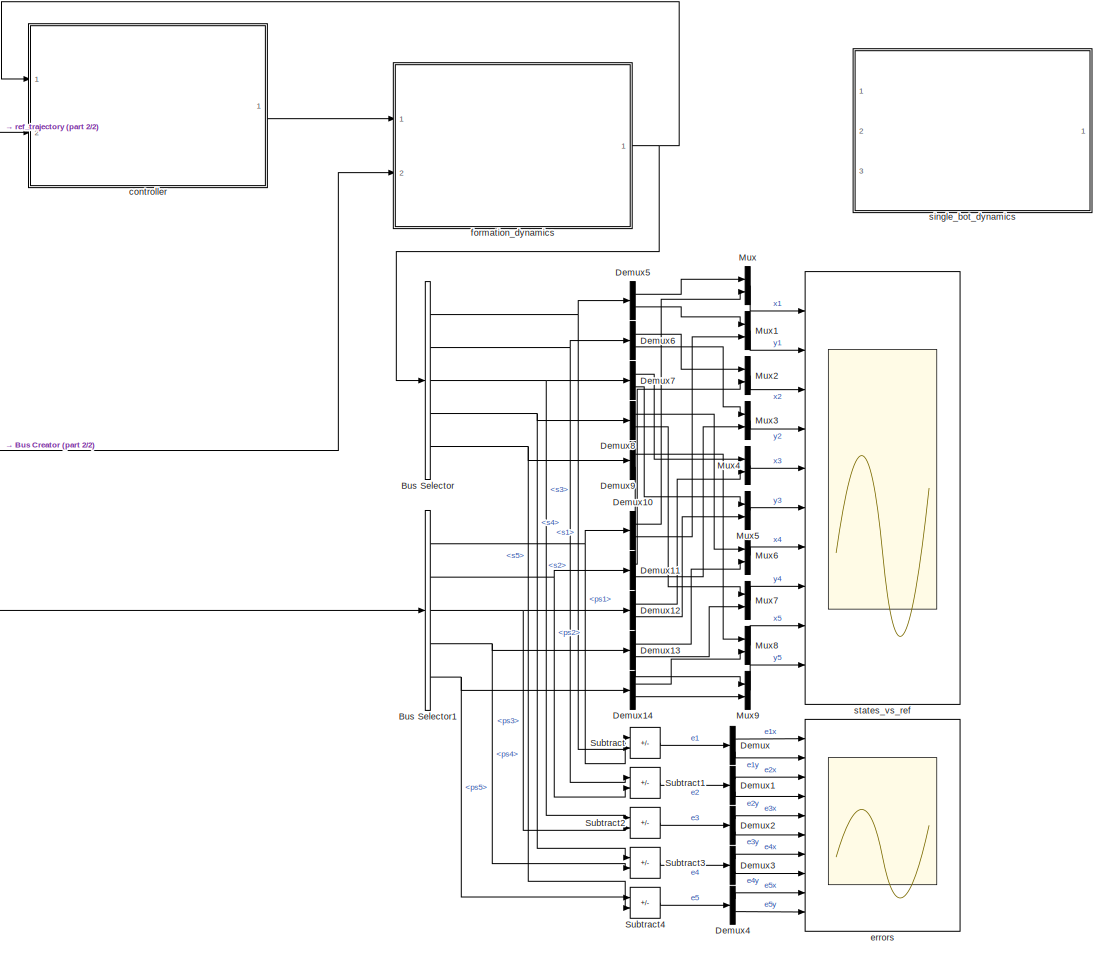
[diagram: root canvas - part 1/2, center side, full height]
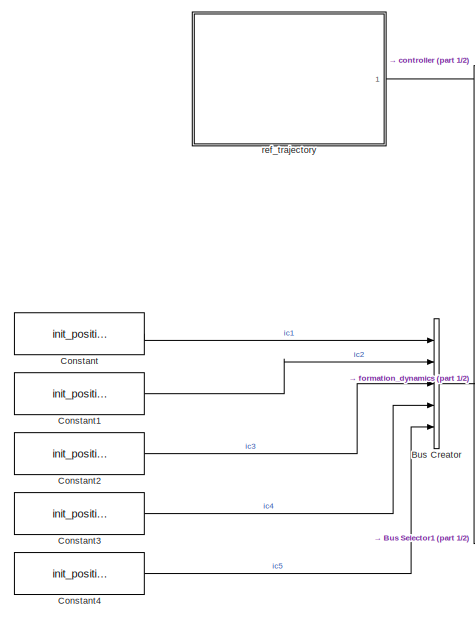
[diagram: root canvas - part 2/2, middle left region]
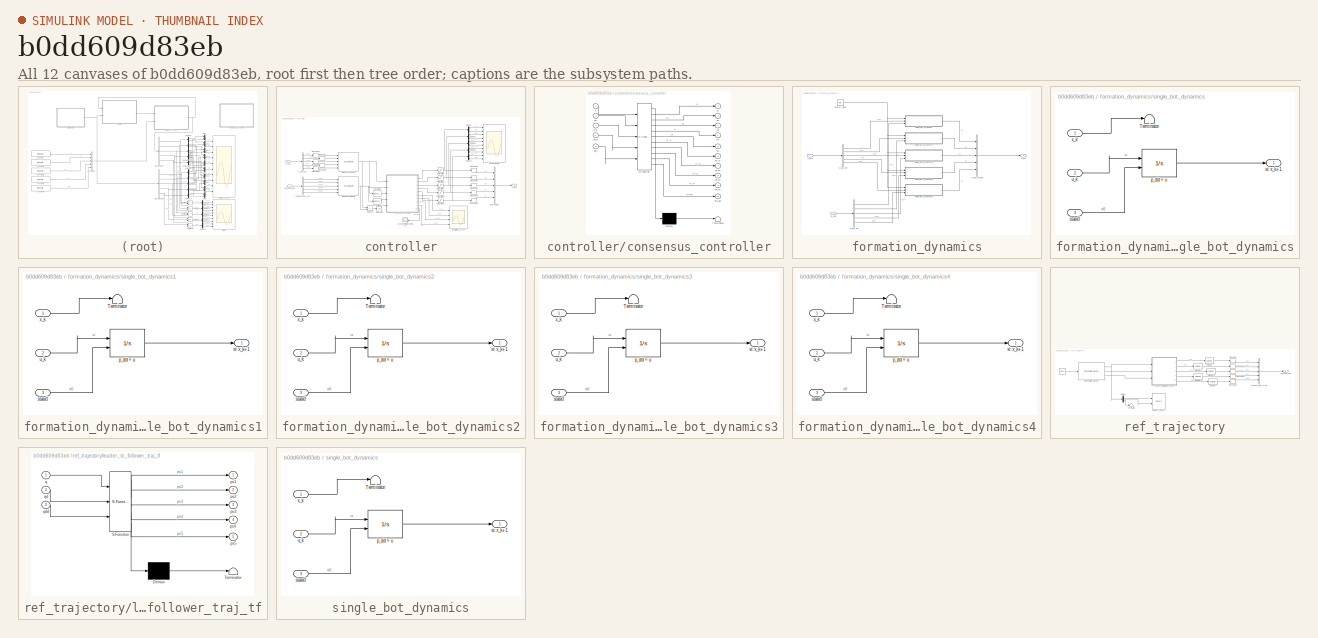
[diagram: thumbnail index - all 12 canvases of the model, root first then tree order]
MODEL slx_b0dd609d83eb
KIND model
CONFIG AbsTol = auto
CONFIG EnableMultiTasking = off
CONFIG FixedStep = 0.1
CONFIG MaxStep = auto
CONFIG MinStep = auto
CONFIG RelTol = 1e-3
CONFIG SampleTimeConstraint = Unconstrained
CONFIG SolverName = ode4
CONFIG StartTime = 0.0
CONFIG StopTime = 10
BLOCK [BusCreator] Bus Creator
  DisplayOption = bar
  InheritFromInputs = on
  Inputs = 5
  Ports = [5, 1]
BLOCK [BusSelector] Bus Selector
  OutputSignals = s1,s2,s3,s4,s5
  Ports = [1, 5]
BLOCK [BusSelector] Bus Selector1
  OutputSignals = ps1,ps2,ps3,ps4,ps5
  Ports = [1, 5]
BLOCK [Constant] Constant
  Value = init_positions(1, 1:2)
BLOCK [Constant] Constant1
  Value = init_positions(2, 1:2)
BLOCK [Constant] Constant2
  Value = init_positions(3, 1:2)
BLOCK [Constant] Constant3
  Value = init_positions(4, 1:2)
BLOCK [Constant] Constant4
  Value = init_positions(5, 1:2)
BLOCK [Demux] Demux
  Outputs = 2
  Ports = [1, 2]
BLOCK [Demux] Demux1
  Outputs = 2
  Ports = [1, 2]
BLOCK [Demux] Demux10
  Outputs = 2
  Ports = [1, 2]
BLOCK [Demux] Demux11
  Outputs = 2
  Ports = [1, 2]
BLOCK [Demux] Demux12
  Outputs = 2
  Ports = [1, 2]
BLOCK [Demux] Demux13
  Outputs = 2
  Ports = [1, 2]
BLOCK [Demux] Demux14
  Outputs = 2
  Ports = [1, 2]
BLOCK [Demux] Demux2
  Outputs = 2
  Ports = [1, 2]
BLOCK [Demux] Demux3
  Outputs = 2
  Ports = [1, 2]
BLOCK [Demux] Demux4
  Outputs = 2
  Ports = [1, 2]
BLOCK [Demux] Demux5
  Outputs = 2
  Ports = [1, 2]
BLOCK [Demux] Demux6
  Outputs = 2
  Ports = [1, 2]
BLOCK [Demux] Demux7
  Outputs = 2
  Ports = [1, 2]
BLOCK [Demux] Demux8
  Outputs = 2
  Ports = [1, 2]
BLOCK [Demux] Demux9
  Outputs = 2
  Ports = [1, 2]
BLOCK [Mux] Mux
  DisplayOption = bar
  Inputs = 2
  Ports = [2, 1]
BLOCK [Mux] Mux1
  DisplayOption = bar
  Inputs = 2
  Ports = [2, 1]
BLOCK [Mux] Mux2
  DisplayOption = bar
  Inputs = 2
  Ports = [2, 1]
BLOCK [Mux] Mux3
  DisplayOption = bar
  Inputs = 2
  Ports = [2, 1]
BLOCK [Mux] Mux4
  DisplayOption = bar
  Inputs = 2
  Ports = [2, 1]
BLOCK [Mux] Mux5
  DisplayOption = bar
  Inputs = 2
  Ports = [2, 1]
BLOCK [Mux] Mux6
  DisplayOption = bar
  Inputs = 2
  Ports = [2, 1]
BLOCK [Mux] Mux7
  DisplayOption = bar
  Inputs = 2
  Ports = [2, 1]
BLOCK [Mux] Mux8
  DisplayOption = bar
  Inputs = 2
  Ports = [2, 1]
BLOCK [Mux] Mux9
  DisplayOption = bar
  Inputs = 2
  Ports = [2, 1]
BLOCK [Sum] Subtract
  IconShape = rectangular
  Inputs = +-
  Ports = [2, 1]
BLOCK [Sum] Subtract1
  IconShape = rectangular
  Inputs = +-
  Ports = [2, 1]
BLOCK [Sum] Subtract2
  IconShape = rectangular
  Inputs = +-
  Ports = [2, 1]
BLOCK [Sum] Subtract3
  IconShape = rectangular
  Inputs = +-
  Ports = [2, 1]
BLOCK [Sum] Subtract4
  IconShape = rectangular
  Inputs = +-
  Ports = [2, 1]
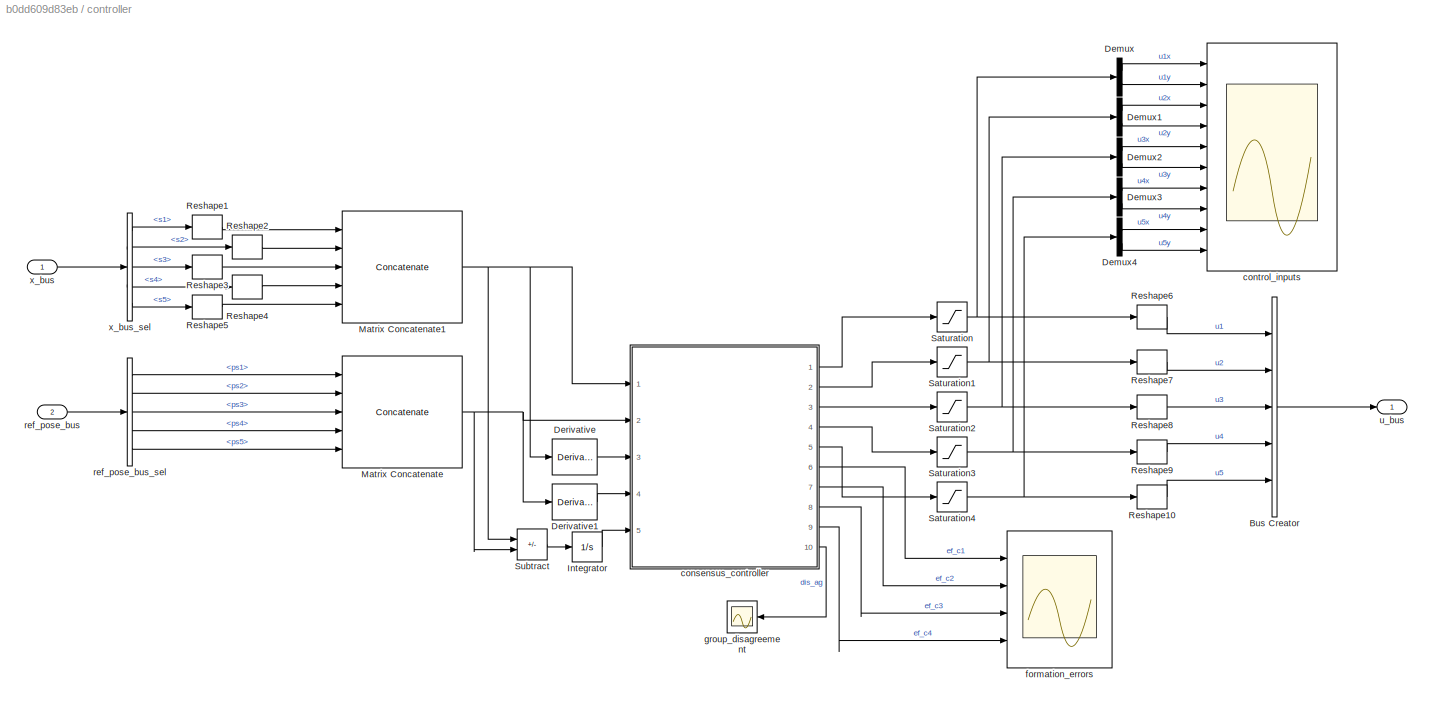
BLOCK [SubSystem] controller
  Ports = [2, 1]
  RequestExecContextInheritance = off
BLOCK [BusCreator] controller/Bus Creator
  DisplayOption = bar
  InheritFromInputs = on
  Inputs = 5
  Ports = [5, 1]
BLOCK [Demux] controller/Demux
  Outputs = 2
  Ports = [1, 2]
BLOCK [Demux] controller/Demux1
  Outputs = 2
  Ports = [1, 2]
BLOCK [Demux] controller/Demux2
  Outputs = 2
  Ports = [1, 2]
BLOCK [Demux] controller/Demux3
  Outputs = 2
  Ports = [1, 2]
BLOCK [Demux] controller/Demux4
  Outputs = 2
  Ports = [1, 2]
BLOCK [Derivative] controller/Derivative
BLOCK [Derivative] controller/Derivative1
BLOCK [Integrator] controller/Integrator
  Ports = [1, 1]
BLOCK [Concatenate] controller/Matrix Concatenate
  ConcatenateDimension = 2
  Mode = Multidimensional array
  NumInputs = 5
  Ports = [5, 1]
BLOCK [Concatenate] controller/Matrix Concatenate1
  ConcatenateDimension = 2
  Mode = Multidimensional array
  NumInputs = 5
  Ports = [5, 1]
BLOCK [Reshape] controller/Reshape1
  OutputDimensionality = Column vector (2-D)
  Ports = [1, 1]
BLOCK [Reshape] controller/Reshape10
  OutputDimensionality = Column vector (2-D)
  Ports = [1, 1]
BLOCK [Reshape] controller/Reshape2
  OutputDimensionality = Column vector (2-D)
  Ports = [1, 1]
BLOCK [Reshape] controller/Reshape3
  OutputDimensionality = Column vector (2-D)
  Ports = [1, 1]
BLOCK [Reshape] controller/Reshape4
  OutputDimensionality = Column vector (2-D)
  Ports = [1, 1]
BLOCK [Reshape] controller/Reshape5
  OutputDimensionality = Column vector (2-D)
  Ports = [1, 1]
BLOCK [Reshape] controller/Reshape6
  OutputDimensionality = Column vector (2-D)
  Ports = [1, 1]
BLOCK [Reshape] controller/Reshape7
  OutputDimensionality = Column vector (2-D)
  Ports = [1, 1]
BLOCK [Reshape] controller/Reshape8
  OutputDimensionality = Column vector (2-D)
  Ports = [1, 1]
BLOCK [Reshape] controller/Reshape9
  OutputDimensionality = Column vector (2-D)
  Ports = [1, 1]
BLOCK [Saturate] controller/Saturation
  LowerLimit = -1
  UpperLimit = 1
BLOCK [Saturate] controller/Saturation1
  LowerLimit = -1
  UpperLimit = 1
BLOCK [Saturate] controller/Saturation2
  LowerLimit = -1
  UpperLimit = 1
BLOCK [Saturate] controller/Saturation3
  LowerLimit = -1
  UpperLimit = 1
BLOCK [Saturate] controller/Saturation4
  LowerLimit = -1
  UpperLimit = 1
BLOCK [Sum] controller/Subtract
  IconShape = rectangular
  Inputs = +-
  Ports = [2, 1]
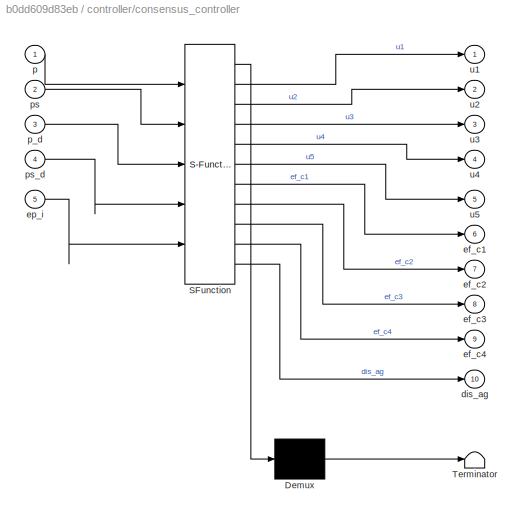
BLOCK [SubSystem] controller/consensus_controller
  ErrorFcn = Stateflow.Translate.translate
  PermitHierarchicalResolution = ExplicitOnly
  Ports = [5, 10]
  RequestExecContextInheritance = off
  SFBlockType = MATLAB Function
  TreatAsAtomicUnit = on
BLOCK [Demux] controller/consensus_controller/ Demux 
  Outputs = 1
  Ports = [1, 1]
BLOCK [S-Function] controller/consensus_controller/ SFunction 
  EnableBusSupport = on
  FunctionName = sf_sfun
  Parameters = A,central_bot_idx,num_bots,static_formation
  PortCounts = [5 11]
  Ports = [5, 11]
  SFcnIsStateOwnerBlock = off
  SFunctionDeploymentMode = off
  Tag = Stateflow S-Function 2
BLOCK [Terminator] controller/consensus_controller/ Terminator 
BLOCK [Outport] controller/consensus_controller/dis_ag
  Port = 10
BLOCK [Outport] controller/consensus_controller/ef_c1
  Port = 6
BLOCK [Outport] controller/consensus_controller/ef_c2
  Port = 7
BLOCK [Outport] controller/consensus_controller/ef_c3
  Port = 8
BLOCK [Outport] controller/consensus_controller/ef_c4
  Port = 9
BLOCK [Inport] controller/consensus_controller/ep_i
  Port = 5
BLOCK [Inport] controller/consensus_controller/p
BLOCK [Inport] controller/consensus_controller/p_d
  Port = 3
BLOCK [Inport] controller/consensus_controller/ps
  Port = 2
BLOCK [Inport] controller/consensus_controller/ps_d
  Port = 4
BLOCK [Outport] controller/consensus_controller/u1
BLOCK [Outport] controller/consensus_controller/u2
  Port = 2
BLOCK [Outport] controller/consensus_controller/u3
  Port = 3
BLOCK [Outport] controller/consensus_controller/u4
  Port = 4
BLOCK [Outport] controller/consensus_controller/u5
  Port = 5
BLOCK [Scope] controller/control_inputs
  Floating = off
  NumInputPorts = 10
  Ports = [10]
  ScopeSpecificationString = Simulink.scopes.TimeScopeBlockCfg('CurrentConfiguration', extmgr.ConfigurationSet(extmgr.Configuration('Core','General UI',true,'FigureColor',[1 1 1]),extmgr.Configuration('Core','Source UI',true),extmgr.Configuration('Sources','WiredSimulink',true,'DataLoggingVariableName','ScopeData2'),extmgr.Configuration('Visuals','Time Domain',true,'SerializedDisplays',{struct('MinYLimReal','-1.25','MaxYLimRe...<+17369ch>
BLOCK [Scope] controller/formation_errors
  Floating = off
  NumInputPorts = 4
  Ports = [4]
  ScopeSpecificationString = Simulink.scopes.TimeScopeBlockCfg('CurrentConfiguration', extmgr.ConfigurationSet(extmgr.Configuration('Core','General UI',true,'FigureColor',[1 1 1]),extmgr.Configuration('Core','Source UI',true),extmgr.Configuration('Sources','WiredSimulink',true,'DataLoggingVariableName','ScopeData1'),extmgr.Configuration('Visuals','Time Domain',true,'SerializedDisplays',{struct('MinYLimReal','-4.62536','MaxYLi...<+4509ch>
BLOCK [Scope] controller/group_disagreement
  Floating = off
  NumInputPorts = 1
  Ports = [1]
  ScopeSpecificationString = Simulink.scopes.TimeScopeBlockCfg('CurrentConfiguration', extmgr.ConfigurationSet(extmgr.Configuration('Core','General UI',true,'FigureColor',[1 1 1]),extmgr.Configuration('Core','Source UI',true),extmgr.Configuration('Sources','WiredSimulink',true,'DataLoggingVariableName','ScopeData1'),extmgr.Configuration('Visuals','Time Domain',true,'SerializedDisplays',{struct('MinYLimReal','-16.78493','MaxYL...<+2150ch>
BLOCK [Inport] controller/ref_pose_bus
  Port = 2
BLOCK [BusSelector] controller/ref_pose_bus_sel
  OutputSignals = ps1,ps2,ps3,ps4,ps5
  Ports = [1, 5]
BLOCK [Outport] controller/u_bus
BLOCK [Inport] controller/x_bus
BLOCK [BusSelector] controller/x_bus_sel
  OutputSignals = s1,s2,s3,s4,s5
  Ports = [1, 5]
BLOCK [Scope] errors
  Floating = off
  NumInputPorts = 10
  Ports = [10]
  ScopeSpecificationString = Simulink.scopes.TimeScopeBlockCfg('CurrentConfiguration', extmgr.ConfigurationSet(extmgr.Configuration('Core','General UI',true,'FigureColor',[1 1 1]),extmgr.Configuration('Core','Source UI',true),extmgr.Configuration('Sources','WiredSimulink',true,'DataLoggingVariableName','ScopeData1'),extmgr.Configuration('Visuals','Time Domain',true,'SerializedDisplays',{struct('MinYLimReal','-0.68329','MaxYLi...<+16994ch>
BLOCK [SubSystem] formation_dynamics
  Ports = [2, 1]
  RequestExecContextInheritance = off
BLOCK [Constant] formation_dynamics/dummy_input
  Value = [0;0]
BLOCK [Inport] formation_dynamics/ic_bus
  Port = 2
BLOCK [BusSelector] formation_dynamics/ic_bus_sel
  OutputSignals = ic1,ic2,ic3,ic4,ic5
  Ports = [1, 5]
BLOCK [SubSystem] formation_dynamics/single_bot_dynamics
  Ports = [3, 1]
  RequestExecContextInheritance = off
BLOCK [Terminator] formation_dynamics/single_bot_dynamics/Terminator
BLOCK [Integrator] formation_dynamics/single_bot_dynamics/p_dot = u
  InitialConditionSource = external
  Ports = [2, 1]
BLOCK [Outport] formation_dynamics/single_bot_dynamics/si: x_k+1
BLOCK [Inport] formation_dynamics/single_bot_dynamics/state0
  Port = 3
BLOCK [Inport] formation_dynamics/single_bot_dynamics/u_k
  Port = 2
BLOCK [Inport] formation_dynamics/single_bot_dynamics/x_k
BLOCK [SubSystem] formation_dynamics/single_bot_dynamics1
  Ports = [3, 1]
  RequestExecContextInheritance = off
BLOCK [Terminator] formation_dynamics/single_bot_dynamics1/Terminator
BLOCK [Integrator] formation_dynamics/single_bot_dynamics1/p_dot = u
  InitialConditionSource = external
  Ports = [2, 1]
BLOCK [Outport] formation_dynamics/single_bot_dynamics1/si: x_k+1
BLOCK [Inport] formation_dynamics/single_bot_dynamics1/state0
  Port = 3
BLOCK [Inport] formation_dynamics/single_bot_dynamics1/u_k
  Port = 2
BLOCK [Inport] formation_dynamics/single_bot_dynamics1/x_k
BLOCK [SubSystem] formation_dynamics/single_bot_dynamics2
  Ports = [3, 1]
  RequestExecContextInheritance = off
BLOCK [Terminator] formation_dynamics/single_bot_dynamics2/Terminator
BLOCK [Integrator] formation_dynamics/single_bot_dynamics2/p_dot = u
  InitialConditionSource = external
  Ports = [2, 1]
BLOCK [Outport] formation_dynamics/single_bot_dynamics2/si: x_k+1
BLOCK [Inport] formation_dynamics/single_bot_dynamics2/state0
  Port = 3
BLOCK [Inport] formation_dynamics/single_bot_dynamics2/u_k
  Port = 2
BLOCK [Inport] formation_dynamics/single_bot_dynamics2/x_k
BLOCK [SubSystem] formation_dynamics/single_bot_dynamics3
  Ports = [3, 1]
  RequestExecContextInheritance = off
BLOCK [Terminator] formation_dynamics/single_bot_dynamics3/Terminator
BLOCK [Integrator] formation_dynamics/single_bot_dynamics3/p_dot = u
  InitialConditionSource = external
  Ports = [2, 1]
BLOCK [Outport] formation_dynamics/single_bot_dynamics3/si: x_k+1
BLOCK [Inport] formation_dynamics/single_bot_dynamics3/state0
  Port = 3
BLOCK [Inport] formation_dynamics/single_bot_dynamics3/u_k
  Port = 2
BLOCK [Inport] formation_dynamics/single_bot_dynamics3/x_k
BLOCK [SubSystem] formation_dynamics/single_bot_dynamics4
  Ports = [3, 1]
  RequestExecContextInheritance = off
BLOCK [Terminator] formation_dynamics/single_bot_dynamics4/Terminator
BLOCK [Integrator] formation_dynamics/single_bot_dynamics4/p_dot = u
  InitialConditionSource = external
  Ports = [2, 1]
BLOCK [Outport] formation_dynamics/single_bot_dynamics4/si: x_k+1
BLOCK [Inport] formation_dynamics/single_bot_dynamics4/state0
  Port = 3
BLOCK [Inport] formation_dynamics/single_bot_dynamics4/u_k
  Port = 2
BLOCK [Inport] formation_dynamics/single_bot_dynamics4/x_k
BLOCK [Inport] formation_dynamics/u_bus
BLOCK [BusSelector] formation_dynamics/u_bus_sel
  OutputSignals = u1,u2,u3,u4,u5
  Ports = [1, 5]
BLOCK [Outport] formation_dynamics/x_bus
BLOCK [BusCreator] formation_dynamics/x_bus_create
  DisplayOption = bar
  InheritFromInputs = on
  Inputs = 5
  Ports = [5, 1]
BLOCK [SubSystem] ref_trajectory
  Ports = [0, 1]
  RequestExecContextInheritance = off
BLOCK [Demux] ref_trajectory/Demux
  Outputs = 3
  Ports = [1, 3]
BLOCK [Reference] ref_trajectory/Polynomial Trajectory  REF=robotcorelib/Polynomial Trajectory
  Ports = [1, 3]
  SourceBlock = robotcorelib/Polynomial Trajectory
  SourceProductBaseCode = NV,RO,RR,UV
  SourceType = robotics.slcore.internal.block.PolyTrajSys
BLOCK [Reshape] ref_trajectory/Reshape
  OutputDimensionality = Column vector (2-D)
  Ports = [1, 1]
BLOCK [Reshape] ref_trajectory/Reshape1
  OutputDimensionality = Column vector (2-D)
  Ports = [1, 1]
BLOCK [Reshape] ref_trajectory/Reshape2
  OutputDimensionality = Column vector (2-D)
  Ports = [1, 1]
BLOCK [Reshape] ref_trajectory/Reshape3
  OutputDimensionality = Column vector (2-D)
  Ports = [1, 1]
BLOCK [Reshape] ref_trajectory/Reshape4
  OutputDimensionality = Column vector (2-D)
  Ports = [1, 1]
BLOCK [Selector] ref_trajectory/Selector
  IndexOptions = Index vector (dialog)
  Indices = [1 2]
  InputPortWidth = 3
  OutputSizes = 1
  Ports = [1, 1]
BLOCK [Selector] ref_trajectory/Selector1
  IndexOptions = Index vector (dialog)
  Indices = [1 2]
  InputPortWidth = 3
  OutputSizes = 1
  Ports = [1, 1]
BLOCK [Selector] ref_trajectory/Selector2
  IndexOptions = Index vector (dialog)
  Indices = [1 2]
  InputPortWidth = 3
  OutputSizes = 1
  Ports = [1, 1]
BLOCK [Selector] ref_trajectory/Selector3
  IndexOptions = Index vector (dialog)
  Indices = [1 2]
  InputPortWidth = 3
  OutputSizes = 1
  Ports = [1, 1]
BLOCK [Selector] ref_trajectory/Selector4
  IndexOptions = Index vector (dialog)
  Indices = [1 2]
  InputPortWidth = 3
  OutputSizes = 1
  Ports = [1, 1]
BLOCK [Terminator] ref_trajectory/Terminator
BLOCK [Record] ref_trajectory/leader_ref_traj
  CompatibilityTag = XY
  FileSettingsInternal = {"entries":[{"content":{"excelSettings":{"content":{},"type":"Streamout.ExcelSettings"}},"type":"Streamout.FileSettingStorage","uuid":"e7b4e02a-8a6c-4c28-bff8-32dd845a5106"}],"packageUris":["http://schema.mathworks.com/mf0/streamout_blocks/R2020a"],"version":"1.0"}
  Layout = [1 1]
  Ports = [2]
  SignalsInternal = {"entries":[{"content":{"signals":[{"content":{"blockPath":["single_integrator_formation_control/ref_trajectory/leader_ref_traj"],"channel":[],"dimensions":[1,1],"domain":"single_integrator_formation_control/ref_trajectory/leader_ref_traj","lineColor":"#a2142f","plots":[1],"port":1,"sid":[""],"signalID":8769,"signalName":"Demux:1"},"type":"RecordBlkView.Signal","uuid":"6b5f94f3-8821-4aca-bcdf-331b...<+563ch>
  VisualizationBindings = {"xyplotplugin":{"info":[{"series":[{"bindingParametersList":[{"parameter":"X-Axis","signalID":8769,"signalName":"Demux:1"},{"parameter":"Y-Axis","signalID":8773,"signalName":"Demux:2"}],"seriesID":26954}],"subplotID":1}]}}
  st = -1
BLOCK [SubSystem] ref_trajectory/leader_to_follower_traj_tf
  ErrorFcn = Stateflow.Translate.translate
  PermitHierarchicalResolution = ExplicitOnly
  Ports = [3, 5]
  RequestExecContextInheritance = off
  SFBlockType = MATLAB Function
  TreatAsAtomicUnit = on
BLOCK [Demux] ref_trajectory/leader_to_follower_traj_tf/ Demux 
  Outputs = 1
  Ports = [1, 1]
BLOCK [S-Function] ref_trajectory/leader_to_follower_traj_tf/ SFunction 
  EnableBusSupport = on
  FunctionName = sf_sfun
  Parameters = tf_list
  PortCounts = [3 6]
  Ports = [3, 6]
  SFcnIsStateOwnerBlock = off
  SFunctionDeploymentMode = off
  Tag = Stateflow S-Function 1
BLOCK [Terminator] ref_trajectory/leader_to_follower_traj_tf/ Terminator 
BLOCK [Outport] ref_trajectory/leader_to_follower_traj_tf/ps1
BLOCK [Outport] ref_trajectory/leader_to_follower_traj_tf/ps2
  Port = 2
BLOCK [Outport] ref_trajectory/leader_to_follower_traj_tf/ps3
  Port = 3
BLOCK [Outport] ref_trajectory/leader_to_follower_traj_tf/ps4
  Port = 4
BLOCK [Outport] ref_trajectory/leader_to_follower_traj_tf/ps5
  Port = 5
BLOCK [Inport] ref_trajectory/leader_to_follower_traj_tf/q
BLOCK [Inport] ref_trajectory/leader_to_follower_traj_tf/qd
  Port = 2
BLOCK [Inport] ref_trajectory/leader_to_follower_traj_tf/qdd
  Port = 3
BLOCK [Outport] ref_trajectory/ref_pose_bus
BLOCK [BusCreator] ref_trajectory/ref_pose_bus_creat
  DisplayOption = bar
  InheritFromInputs = on
  Inputs = 5
  Ports = [5, 1]
BLOCK [Clock] ref_trajectory/t
BLOCK [SubSystem] single_bot_dynamics
  Commented = on
  Ports = [3, 1]
  RequestExecContextInheritance = off
BLOCK [Terminator] single_bot_dynamics/Terminator
BLOCK [Integrator] single_bot_dynamics/p_dot = u
  InitialConditionSource = external
  Ports = [2, 1]
BLOCK [Outport] single_bot_dynamics/si: x_k+1
BLOCK [Inport] single_bot_dynamics/state0
  Port = 3
BLOCK [Inport] single_bot_dynamics/u_k
  Port = 2
BLOCK [Inport] single_bot_dynamics/x_k
BLOCK [Scope] states_vs_ref
  Floating = off
  NumInputPorts = 10
  Ports = [10]
  ScopeSpecificationString = Simulink.scopes.TimeScopeBlockCfg('CurrentConfiguration', extmgr.ConfigurationSet(extmgr.Configuration('Core','General UI',true,'FigureColor',[1 1 1]),extmgr.Configuration('Core','Source UI',true),extmgr.Configuration('Sources','WiredSimulink',true),extmgr.Configuration('Visuals','Time Domain',true,'SerializedDisplays',{struct('MinYLimReal','2.11612','MaxYLimReal','10.95495','YLabelReal','','MinYL...<+10088ch>
LINE Bus Creator:1 -> formation_dynamics:2
NET Bus Selector1:1 -> Demux10:1, Subtract:2
NET Bus Selector1:2 -> Demux11:1, Subtract1:2
NET Bus Selector1:3 -> Demux12:1, Subtract2:2
NET Bus Selector1:4 -> Demux13:1, Subtract3:2
NET Bus Selector1:5 -> Demux14:1, Subtract4:2
NET Bus Selector:1 -> Demux5:1, Subtract:1
NET Bus Selector:2 -> Demux6:1, Subtract1:1
NET Bus Selector:3 -> Demux7:1, Subtract2:1
NET Bus Selector:4 -> Demux8:1, Subtract3:1
NET Bus Selector:5 -> Demux9:1, Subtract4:1
LINE Constant1:1 -> Bus Creator:2
LINE Constant2:1 -> Bus Creator:3
LINE Constant3:1 -> Bus Creator:4
LINE Constant4:1 -> Bus Creator:5
LINE Constant:1 -> Bus Creator:1
LINE Demux10:1 -> Mux:2
LINE Demux10:2 -> Mux1:2
LINE Demux11:1 -> Mux2:2
LINE Demux11:2 -> Mux3:2
LINE Demux12:1 -> Mux4:2
LINE Demux12:2 -> Mux5:2
LINE Demux13:1 -> Mux6:2
LINE Demux13:2 -> Mux7:2
LINE Demux14:1 -> Mux8:2
LINE Demux14:2 -> Mux9:2
LINE Demux1:1 -> errors:3
LINE Demux1:2 -> errors:4
LINE Demux2:1 -> errors:5
LINE Demux2:2 -> errors:6
LINE Demux3:1 -> errors:7
LINE Demux3:2 -> errors:8
LINE Demux4:1 -> errors:9
LINE Demux4:2 -> errors:10
LINE Demux5:1 -> Mux:1
LINE Demux5:2 -> Mux1:1
LINE Demux6:1 -> Mux2:1
LINE Demux6:2 -> Mux3:1
LINE Demux7:1 -> Mux4:1
LINE Demux7:2 -> Mux5:1
LINE Demux8:1 -> Mux6:1
LINE Demux8:2 -> Mux7:1
LINE Demux9:1 -> Mux8:1
LINE Demux9:2 -> Mux9:1
LINE Demux:1 -> errors:1
LINE Demux:2 -> errors:2
LINE Mux1:1 -> states_vs_ref:2
LINE Mux2:1 -> states_vs_ref:3
LINE Mux3:1 -> states_vs_ref:4
LINE Mux4:1 -> states_vs_ref:5
LINE Mux5:1 -> states_vs_ref:6
LINE Mux6:1 -> states_vs_ref:7
LINE Mux7:1 -> states_vs_ref:8
LINE Mux8:1 -> states_vs_ref:9
LINE Mux9:1 -> states_vs_ref:10
LINE Mux:1 -> states_vs_ref:1
LINE Subtract1:1 -> Demux1:1
LINE Subtract2:1 -> Demux2:1
LINE Subtract3:1 -> Demux3:1
LINE Subtract4:1 -> Demux4:1
LINE Subtract:1 -> Demux:1
LINE controller/Bus Creator:1 -> controller/u_bus:1
LINE controller/Demux1:1 -> controller/control_inputs:3
LINE controller/Demux1:2 -> controller/control_inputs:4
LINE controller/Demux2:1 -> controller/control_inputs:5
LINE controller/Demux2:2 -> controller/control_inputs:6
LINE controller/Demux3:1 -> controller/control_inputs:7
LINE controller/Demux3:2 -> controller/control_inputs:8
LINE controller/Demux4:1 -> controller/control_inputs:9
LINE controller/Demux4:2 -> controller/control_inputs:10
LINE controller/Demux:1 -> controller/control_inputs:1
LINE controller/Demux:2 -> controller/control_inputs:2
LINE controller/Derivative1:1 -> controller/consensus_controller:4
LINE controller/Derivative:1 -> controller/consensus_controller:3
LINE controller/Integrator:1 -> controller/consensus_controller:5
NET controller/Matrix Concatenate1:1 -> controller/Derivative:1, controller/Subtract:1, controller/consensus_controller:1
NET controller/Matrix Concatenate:1 -> controller/Derivative1:1, controller/Subtract:2, controller/consensus_controller:2
LINE controller/Reshape10:1 -> controller/Bus Creator:5
LINE controller/Reshape1:1 -> controller/Matrix Concatenate1:1
LINE controller/Reshape2:1 -> controller/Matrix Concatenate1:2
LINE controller/Reshape3:1 -> controller/Matrix Concatenate1:3
LINE controller/Reshape4:1 -> controller/Matrix Concatenate1:4
LINE controller/Reshape5:1 -> controller/Matrix Concatenate1:5
LINE controller/Reshape6:1 -> controller/Bus Creator:1
LINE controller/Reshape7:1 -> controller/Bus Creator:2
LINE controller/Reshape8:1 -> controller/Bus Creator:3
LINE controller/Reshape9:1 -> controller/Bus Creator:4
NET controller/Saturation1:1 -> controller/Demux1:1, controller/Reshape7:1
NET controller/Saturation2:1 -> controller/Demux2:1, controller/Reshape8:1
NET controller/Saturation3:1 -> controller/Demux3:1, controller/Reshape9:1
NET controller/Saturation4:1 -> controller/Demux4:1, controller/Reshape10:1
NET controller/Saturation:1 -> controller/Demux:1, controller/Reshape6:1
LINE controller/Subtract:1 -> controller/Integrator:1
LINE controller/consensus_controller:1 -> controller/Saturation:1
LINE controller/consensus_controller:10 -> controller/group_disagreement:1
LINE controller/consensus_controller:2 -> controller/Saturation1:1
LINE controller/consensus_controller:3 -> controller/Saturation2:1
LINE controller/consensus_controller:4 -> controller/Saturation3:1
LINE controller/consensus_controller:5 -> controller/Saturation4:1
LINE controller/consensus_controller:6 -> controller/formation_errors:1
LINE controller/consensus_controller:7 -> controller/formation_errors:2
LINE controller/consensus_controller:8 -> controller/formation_errors:3
LINE controller/consensus_controller:9 -> controller/formation_errors:4
LINE controller/ref_pose_bus:1 -> controller/ref_pose_bus_sel:1
LINE controller/ref_pose_bus_sel:1 -> controller/Matrix Concatenate:1
LINE controller/ref_pose_bus_sel:2 -> controller/Matrix Concatenate:2
LINE controller/ref_pose_bus_sel:3 -> controller/Matrix Concatenate:3
LINE controller/ref_pose_bus_sel:4 -> controller/Matrix Concatenate:4
LINE controller/ref_pose_bus_sel:5 -> controller/Matrix Concatenate:5
LINE controller/x_bus:1 -> controller/x_bus_sel:1
LINE controller/x_bus_sel:1 -> controller/Reshape1:1
LINE controller/x_bus_sel:2 -> controller/Reshape2:1
LINE controller/x_bus_sel:3 -> controller/Reshape3:1
LINE controller/x_bus_sel:4 -> controller/Reshape4:1
LINE controller/x_bus_sel:5 -> controller/Reshape5:1
LINE controller:1 -> formation_dynamics:1
NET formation_dynamics/dummy_input:1 -> formation_dynamics/single_bot_dynamics1:1, formation_dynamics/single_bot_dynamics2:1, formation_dynamics/single_bot_dynamics3:1, formation_dynamics/single_bot_dynamics4:1, formation_dynamics/single_bot_dynamics:1
LINE formation_dynamics/ic_bus:1 -> formation_dynamics/ic_bus_sel:1
LINE formation_dynamics/ic_bus_sel:1 -> formation_dynamics/single_bot_dynamics:3
LINE formation_dynamics/ic_bus_sel:2 -> formation_dynamics/single_bot_dynamics1:3
LINE formation_dynamics/ic_bus_sel:3 -> formation_dynamics/single_bot_dynamics2:3
LINE formation_dynamics/ic_bus_sel:4 -> formation_dynamics/single_bot_dynamics3:3
LINE formation_dynamics/ic_bus_sel:5 -> formation_dynamics/single_bot_dynamics4:3
LINE formation_dynamics/single_bot_dynamics/p_dot = u:1 -> formation_dynamics/single_bot_dynamics/si: x_k+1:1
LINE formation_dynamics/single_bot_dynamics/state0:1 -> formation_dynamics/single_bot_dynamics/p_dot = u:2
LINE formation_dynamics/single_bot_dynamics/u_k:1 -> formation_dynamics/single_bot_dynamics/p_dot = u:1
LINE formation_dynamics/single_bot_dynamics/x_k:1 -> formation_dynamics/single_bot_dynamics/Terminator:1
LINE formation_dynamics/single_bot_dynamics1/p_dot = u:1 -> formation_dynamics/single_bot_dynamics1/si: x_k+1:1
LINE formation_dynamics/single_bot_dynamics1/state0:1 -> formation_dynamics/single_bot_dynamics1/p_dot = u:2
LINE formation_dynamics/single_bot_dynamics1/u_k:1 -> formation_dynamics/single_bot_dynamics1/p_dot = u:1
LINE formation_dynamics/single_bot_dynamics1/x_k:1 -> formation_dynamics/single_bot_dynamics1/Terminator:1
LINE formation_dynamics/single_bot_dynamics1:1 -> formation_dynamics/x_bus_create:2
LINE formation_dynamics/single_bot_dynamics2/p_dot = u:1 -> formation_dynamics/single_bot_dynamics2/si: x_k+1:1
LINE formation_dynamics/single_bot_dynamics2/state0:1 -> formation_dynamics/single_bot_dynamics2/p_dot = u:2
LINE formation_dynamics/single_bot_dynamics2/u_k:1 -> formation_dynamics/single_bot_dynamics2/p_dot = u:1
LINE formation_dynamics/single_bot_dynamics2/x_k:1 -> formation_dynamics/single_bot_dynamics2/Terminator:1
LINE formation_dynamics/single_bot_dynamics2:1 -> formation_dynamics/x_bus_create:3
LINE formation_dynamics/single_bot_dynamics3/p_dot = u:1 -> formation_dynamics/single_bot_dynamics3/si: x_k+1:1
LINE formation_dynamics/single_bot_dynamics3/state0:1 -> formation_dynamics/single_bot_dynamics3/p_dot = u:2
LINE formation_dynamics/single_bot_dynamics3/u_k:1 -> formation_dynamics/single_bot_dynamics3/p_dot = u:1
LINE formation_dynamics/single_bot_dynamics3/x_k:1 -> formation_dynamics/single_bot_dynamics3/Terminator:1
LINE formation_dynamics/single_bot_dynamics3:1 -> formation_dynamics/x_bus_create:4
LINE formation_dynamics/single_bot_dynamics4/p_dot = u:1 -> formation_dynamics/single_bot_dynamics4/si: x_k+1:1
LINE formation_dynamics/single_bot_dynamics4/state0:1 -> formation_dynamics/single_bot_dynamics4/p_dot = u:2
LINE formation_dynamics/single_bot_dynamics4/u_k:1 -> formation_dynamics/single_bot_dynamics4/p_dot = u:1
LINE formation_dynamics/single_bot_dynamics4/x_k:1 -> formation_dynamics/single_bot_dynamics4/Terminator:1
LINE formation_dynamics/single_bot_dynamics4:1 -> formation_dynamics/x_bus_create:5
LINE formation_dynamics/single_bot_dynamics:1 -> formation_dynamics/x_bus_create:1
LINE formation_dynamics/u_bus:1 -> formation_dynamics/u_bus_sel:1
LINE formation_dynamics/u_bus_sel:1 -> formation_dynamics/single_bot_dynamics:2
LINE formation_dynamics/u_bus_sel:2 -> formation_dynamics/single_bot_dynamics1:2
LINE formation_dynamics/u_bus_sel:3 -> formation_dynamics/single_bot_dynamics2:2
LINE formation_dynamics/u_bus_sel:4 -> formation_dynamics/single_bot_dynamics3:2
LINE formation_dynamics/u_bus_sel:5 -> formation_dynamics/single_bot_dynamics4:2
LINE formation_dynamics/x_bus_create:1 -> formation_dynamics/x_bus:1
NET formation_dynamics:1 -> Bus Selector:1, controller:1
LINE ref_trajectory/Demux:1 -> ref_trajectory/leader_ref_traj:1
LINE ref_trajectory/Demux:2 -> ref_trajectory/leader_ref_traj:2
LINE ref_trajectory/Demux:3 -> ref_trajectory/Terminator:1
NET ref_trajectory/Polynomial Trajectory:1 -> ref_trajectory/Demux:1, ref_trajectory/leader_to_follower_traj_tf:1
LINE ref_trajectory/Polynomial Trajectory:2 -> ref_trajectory/leader_to_follower_traj_tf:2
LINE ref_trajectory/Polynomial Trajectory:3 -> ref_trajectory/leader_to_follower_traj_tf:3
LINE ref_trajectory/Reshape1:1 -> ref_trajectory/ref_pose_bus_creat:2
LINE ref_trajectory/Reshape2:1 -> ref_trajectory/ref_pose_bus_creat:3
LINE ref_trajectory/Reshape3:1 -> ref_trajectory/ref_pose_bus_creat:4
LINE ref_trajectory/Reshape4:1 -> ref_trajectory/ref_pose_bus_creat:5
LINE ref_trajectory/Reshape:1 -> ref_trajectory/ref_pose_bus_creat:1
LINE ref_trajectory/Selector1:1 -> ref_trajectory/Reshape1:1
LINE ref_trajectory/Selector2:1 -> ref_trajectory/Reshape2:1
LINE ref_trajectory/Selector3:1 -> ref_trajectory/Reshape3:1
LINE ref_trajectory/Selector4:1 -> ref_trajectory/Reshape4:1
LINE ref_trajectory/Selector:1 -> ref_trajectory/Reshape:1
LINE ref_trajectory/leader_to_follower_traj_tf:1 -> ref_trajectory/Selector:1
LINE ref_trajectory/leader_to_follower_traj_tf:2 -> ref_trajectory/Selector1:1
LINE ref_trajectory/leader_to_follower_traj_tf:3 -> ref_trajectory/Selector2:1
LINE ref_trajectory/leader_to_follower_traj_tf:4 -> ref_trajectory/Selector3:1
LINE ref_trajectory/leader_to_follower_traj_tf:5 -> ref_trajectory/Selector4:1
LINE ref_trajectory/ref_pose_bus_creat:1 -> ref_trajectory/ref_pose_bus:1
LINE ref_trajectory/t:1 -> ref_trajectory/Polynomial Trajectory:1
NET ref_trajectory:1 -> Bus Selector1:1, controller:2
LINE single_bot_dynamics/p_dot = u:1 -> single_bot_dynamics/si: x_k+1:1
LINE single_bot_dynamics/state0:1 -> single_bot_dynamics/p_dot = u:2
LINE single_bot_dynamics/u_k:1 -> single_bot_dynamics/p_dot = u:1
LINE single_bot_dynamics/x_k:1 -> single_bot_dynamics/Terminator:1
note: NET lines group one-source signal fan-out (src -> all destinations, sorted); 1:1 wires keep LINE
CHART ref_trajectory/leader_to_follower_traj_tf states=1 transitions=1
  STATE_LABEL 'eML_blk_kernel()'
  STATE_LABEL "SCRIPT:\nfunction [ps1, ps2, ps3, ps4, ps5] = l2f_traj_tf(q, qd, qdd, tf_list)\nps1 = zeros(size(q));\nps2 = zeros(size(q));\nps3 = zeros(size(q));\nps4 = zeros(size(q));\nps5 = zeros(size(q));\nps1_t = tf_list(:,:,1)*cart2hom(q')';\nps2_t = tf_list(:,:,2)*cart2hom(q')';\nps3_t = tf_list(:,:,3)*cart2hom(q')';\nps4_t = tf_list(:,:,4)*cart2hom(q')';\nps1 = ps1_t(1:3);\nps2 = ps2_t(1:3);\nps3 = ps3_t(1:3);\nps4 = ...<+20ch>"
CHART controller/consensus_controller states=1 transitions=1
  STATE_LABEL 'eML_blk_kernel()'
  STATE_LABEL 'SCRIPT:\nfunction [u1,u2,u3,u4,u5, ef_c1, ef_c2, ef_c3, ef_c4, dis_ag] = consensus_controller(p, ps, p_d, ps_d, ep_i, A, num_bots, central_bot_idx, static_formation)\n%% FLAGS\nUSE_PID_CONTROLLER = false;\nUSE_CONSENSUS_WEIGHT = false; % INSTEAD OF USING THIS, IT IS PREFERRED TO CHANGE ADJACENCY MATRIX INSTEAD.\n%% Setting Parameters\nu_dim = [2,1];\nu = zeros(u_dim(1), u_dim(2), num_bots);\np_dim = size(...<+1784ch>'
CHART  states=0 transitions=0
CHART  states=0 transitions=0
